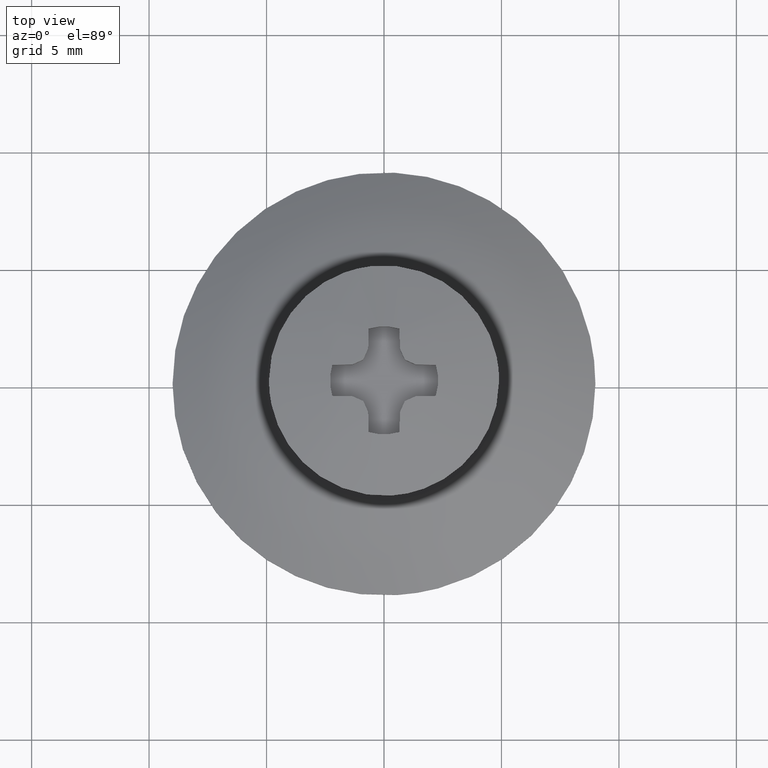
[diagram: clean part render]
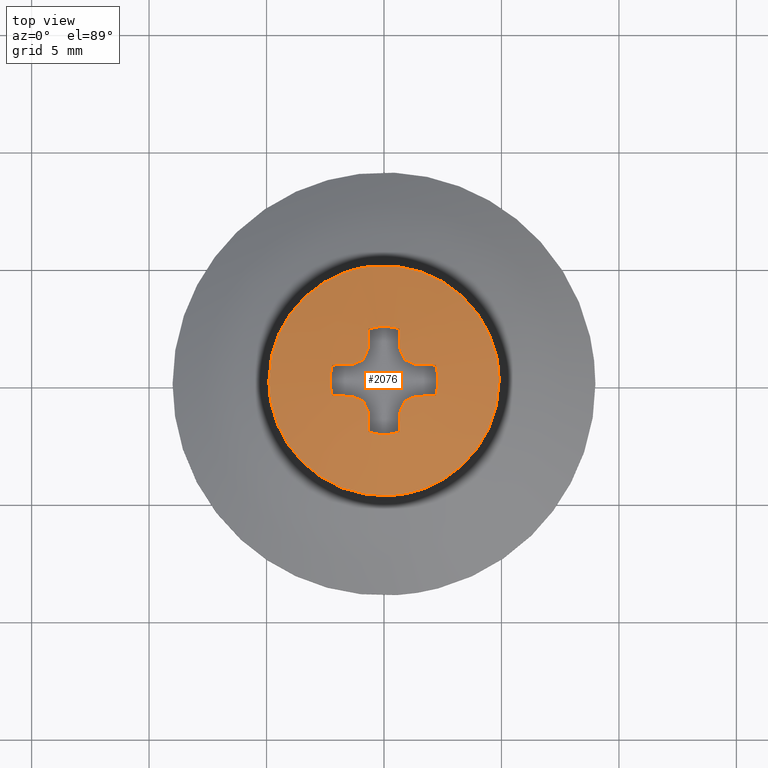
[diagram: same view with one face highlighted and labeled with its STEP entity id]
A machine part, top view. The second image highlights one B-rep face of the part: STEP entity #2076.
In plain terms, the highlighted face is a freeform B-spline surface patch.
Its self-contained STEP definition (entity closure, byte-faithful):
#547=CARTESIAN_POINT('',(-0.578363088957883,4.865746849036269,-0.702089309692383));
#548=VERTEX_POINT('',#547);
#554=CARTESIAN_POINT('',(4.899999618530280,0.0,-0.702089309692383));
#555=VERTEX_POINT('',#554);
#556=CARTESIAN_POINT('',(-0.578363088957883,4.865746849036269,-0.702089309692383));
#557=CARTESIAN_POINT('',(-0.290195831386604,4.899999618530280,-0.702089309692383));
#558=CARTESIAN_POINT('',(0.0,4.899999618530280,-0.702089309692383));
#559=CARTESIAN_POINT('',(4.899999618530281,4.899999618530281,-0.702089309692383));
#560=CARTESIAN_POINT('',(4.899999618530280,0.0,-0.702089309692383));
#568=(BOUNDED_CURVE()B_SPLINE_CURVE(2,(#556,#557,#558,#559,#560),.UNSPECIFIED.,.F.,.U.)B_SPLINE_CURVE_WITH_KNOTS((3,2,3),(0.229562633838624,0.250000000000000,0.500000000000000),.UNSPECIFIED.)CURVE()GEOMETRIC_REPRESENTATION_ITEM()RATIONAL_B_SPLINE_CURVE((0.956027068427728,0.976056136163702,1.0,0.707106781186547,1.0))REPRESENTATION_ITEM(''));
#569=EDGE_CURVE('',#548,#555,#568,.T.);
#571=CARTESIAN_POINT('',(0.299133294678434,-4.890860408311726,-0.702089309692383));
#572=VERTEX_POINT('',#571);
#573=CARTESIAN_POINT('',(4.899999618530280,0.0,-0.702089309692383));
#574=CARTESIAN_POINT('',(4.899999618530280,-4.609463642319453,-0.702089309692383));
#575=CARTESIAN_POINT('',(0.299133294678434,-4.890860408311726,-0.702089309692383));
#583=(BOUNDED_CURVE()B_SPLINE_CURVE(2,(#573,#574,#575),.UNSPECIFIED.,.F.,.U.)B_SPLINE_CURVE_WITH_KNOTS((3,3),(0.500000000000000,0.739333121908045),.UNSPECIFIED.)CURVE()GEOMETRIC_REPRESENTATION_ITEM()RATIONAL_B_SPLINE_CURVE((1.0,0.719603806222721,0.976072383868237))REPRESENTATION_ITEM(''));
#584=EDGE_CURVE('',#555,#572,#583,.T.);
#658=CARTESIAN_POINT('',(-4.899999618530280,0.0,-0.702089309692383));
#659=VERTEX_POINT('',#658);
#660=CARTESIAN_POINT('',(0.299133294678434,-4.890860408311726,-0.702089309692383));
#661=CARTESIAN_POINT('',(0.149706259286306,-4.899999618530280,-0.702089309692383));
#662=CARTESIAN_POINT('',(0.0,-4.899999618530280,-0.702089309692383));
#663=CARTESIAN_POINT('',(-4.899999618530281,-4.899999618530281,-0.702089309692383));
#664=CARTESIAN_POINT('',(-4.899999618530280,0.0,-0.702089309692383));
#672=(BOUNDED_CURVE()B_SPLINE_CURVE(2,(#660,#661,#662,#663,#664),.UNSPECIFIED.,.F.,.U.)B_SPLINE_CURVE_WITH_KNOTS((3,2,3),(0.739333121908045,0.750000000000000,1.0),.UNSPECIFIED.)CURVE()GEOMETRIC_REPRESENTATION_ITEM()RATIONAL_B_SPLINE_CURVE((0.976072383868237,0.987502974963827,1.0,0.707106781186547,1.0))REPRESENTATION_ITEM(''));
#673=EDGE_CURVE('',#572,#659,#672,.T.);
#675=CARTESIAN_POINT('',(-4.899999618530280,0.0,-0.702089309692383));
#676=CARTESIAN_POINT('',(-4.899999618530280,4.352058995941122,-0.702089309692383));
#677=CARTESIAN_POINT('',(-0.578363088957883,4.865746849036269,-0.702089309692383));
#685=(BOUNDED_CURVE()B_SPLINE_CURVE(2,(#675,#676,#677),.UNSPECIFIED.,.F.,.U.)B_SPLINE_CURVE_WITH_KNOTS((3,3),(0.0,0.229562633838624),.UNSPECIFIED.)CURVE()GEOMETRIC_REPRESENTATION_ITEM()RATIONAL_B_SPLINE_CURVE((1.0,0.731050645022846,0.956027068427728))REPRESENTATION_ITEM(''));
#686=EDGE_CURVE('',#659,#548,#685,.T.);
#1345=CARTESIAN_POINT('',(0.674654459122248,1.354762617754006,-0.065755417313702));
#1346=VERTEX_POINT('',#1345);
#1347=CARTESIAN_POINT('',(0.659842881066792,2.203317356239345,-0.152240022699469));
#1348=VERTEX_POINT('',#1347);
#1349=CARTESIAN_POINT('',(0.674654459122248,1.354762617754006,-0.065755417313702));
#1350=CARTESIAN_POINT('',(0.667230202686953,1.780097984067608,-0.098613884001408));
#1351=CARTESIAN_POINT('',(0.659842881066792,2.203317356239345,-0.152240022699469));
#1359=(BOUNDED_CURVE()B_SPLINE_CURVE(2,(#1349,#1350,#1351),.UNSPECIFIED.,.F.,.U.)CURVE()GEOMETRIC_REPRESENTATION_ITEM()QUASI_UNIFORM_CURVE()RATIONAL_B_SPLINE_CURVE((1.0,0.999700733143722,1.0))REPRESENTATION_ITEM(''));
#1360=EDGE_CURVE('',#1346,#1348,#1359,.T.);
#1390=CARTESIAN_POINT('',(-0.659842881066741,2.203317356239395,-0.152240022699423));
#1391=VERTEX_POINT('',#1390);
#1399=CARTESIAN_POINT('',(-0.659842881066741,2.203317356239395,-0.152240022699423));
#1400=CARTESIAN_POINT('',(3.274291E-014,2.400925125479454,-0.152240022699468));
#1401=CARTESIAN_POINT('',(0.659842881066792,2.203317356239345,-0.152240022699469));
#1409=(BOUNDED_CURVE()B_SPLINE_CURVE(2,(#1399,#1400,#1401),.UNSPECIFIED.,.F.,.U.)CURVE()GEOMETRIC_REPRESENTATION_ITEM()QUASI_UNIFORM_CURVE()RATIONAL_B_SPLINE_CURVE((1.0,0.957964067930148,1.0))REPRESENTATION_ITEM(''));
#1410=EDGE_CURVE('',#1391,#1348,#1409,.T.);
#1420=CARTESIAN_POINT('',(-0.674654459122170,1.354762617753792,-0.065755417313681));
#1421=VERTEX_POINT('',#1420);
#1422=CARTESIAN_POINT('',(-0.659842881066741,2.203317356239395,-0.152240022699423));
#1423=CARTESIAN_POINT('',(-0.667230202686888,1.780097984067565,-0.098613884001401));
#1424=CARTESIAN_POINT('',(-0.674654459122170,1.354762617753792,-0.065755417313681));
#1432=(BOUNDED_CURVE()B_SPLINE_CURVE(2,(#1422,#1423,#1424),.UNSPECIFIED.,.F.,.U.)CURVE()GEOMETRIC_REPRESENTATION_ITEM()QUASI_UNIFORM_CURVE()RATIONAL_B_SPLINE_CURVE((1.0,0.999700733143721,1.0))REPRESENTATION_ITEM(''));
#1433=EDGE_CURVE('',#1391,#1421,#1432,.T.);
#1450=CARTESIAN_POINT('',(-0.884174007421563,0.884174007421584,-0.044857865629248));
#1451=VERTEX_POINT('',#1450);
#1452=CARTESIAN_POINT('',(-0.674654459122170,1.354762617753792,-0.065755417313681));
#1453=CARTESIAN_POINT('',(-0.779351305381910,1.119609650942660,-0.051492948637311));
#1454=CARTESIAN_POINT('',(-0.884174007421563,0.884174007421584,-0.044857865629248));
#1462=(BOUNDED_CURVE()B_SPLINE_CURVE(2,(#1452,#1453,#1454),.UNSPECIFIED.,.F.,.U.)CURVE()GEOMETRIC_REPRESENTATION_ITEM()QUASI_UNIFORM_CURVE()RATIONAL_B_SPLINE_CURVE((1.0,0.999890395719999,1.0))REPRESENTATION_ITEM(''));
#1463=EDGE_CURVE('',#1421,#1451,#1462,.T.);
#1480=CARTESIAN_POINT('',(-1.354762617754598,0.674654459121911,-0.065755417313736));
#1481=VERTEX_POINT('',#1480);
#1482=CARTESIAN_POINT('',(-0.884174007421563,0.884174007421584,-0.044857865629248));
#1483=CARTESIAN_POINT('',(-1.119609650943111,0.779351305381763,-0.051492948637329));
#1484=CARTESIAN_POINT('',(-1.354762617754598,0.674654459121911,-0.065755417313736));
#1492=(BOUNDED_CURVE()B_SPLINE_CURVE(2,(#1482,#1483,#1484),.UNSPECIFIED.,.F.,.U.)CURVE()GEOMETRIC_REPRESENTATION_ITEM()QUASI_UNIFORM_CURVE()RATIONAL_B_SPLINE_CURVE((1.0,0.999890395719999,1.0))REPRESENTATION_ITEM(''));
#1493=EDGE_CURVE('',#1451,#1481,#1492,.T.);
#1510=CARTESIAN_POINT('',(-2.203317356239385,0.659842881066497,-0.152240022699462));
#1511=VERTEX_POINT('',#1510);
#1512=CARTESIAN_POINT('',(-1.354762617754598,0.674654459121911,-0.065755417313736));
#1513=CARTESIAN_POINT('',(-1.780097984067905,0.667230202686630,-0.098613884001449));
#1514=CARTESIAN_POINT('',(-2.203317356239385,0.659842881066497,-0.152240022699462));
#1522=(BOUNDED_CURVE()B_SPLINE_CURVE(2,(#1512,#1513,#1514),.UNSPECIFIED.,.F.,.U.)CURVE()GEOMETRIC_REPRESENTATION_ITEM()QUASI_UNIFORM_CURVE()RATIONAL_B_SPLINE_CURVE((1.0,0.999700733143722,1.0))REPRESENTATION_ITEM(''));
#1523=EDGE_CURVE('',#1481,#1511,#1522,.T.);
#1549=CARTESIAN_POINT('',(-2.203317356239440,-0.659842881066695,-0.152240022699423));
#1550=VERTEX_POINT('',#1549);
#1558=CARTESIAN_POINT('',(-2.203317356239440,-0.659842881066695,-0.152240022699423));
#1559=CARTESIAN_POINT('',(-2.400925125479399,-9.150666E-014,-0.152240022699468));
#1560=CARTESIAN_POINT('',(-2.203317356239385,0.659842881066497,-0.152240022699462));
#1568=(BOUNDED_CURVE()B_SPLINE_CURVE(2,(#1558,#1559,#1560),.UNSPECIFIED.,.F.,.U.)CURVE()GEOMETRIC_REPRESENTATION_ITEM()QUASI_UNIFORM_CURVE()RATIONAL_B_SPLINE_CURVE((1.0,0.957964067930170,1.0))REPRESENTATION_ITEM(''));
#1569=EDGE_CURVE('',#1550,#1511,#1568,.T.);
#1579=CARTESIAN_POINT('',(-1.354762617754582,-0.674654459121897,-0.065755417313729));
#1580=VERTEX_POINT('',#1579);
#1581=CARTESIAN_POINT('',(-2.203317356239440,-0.659842881066695,-0.152240022699423));
#1582=CARTESIAN_POINT('',(-1.780097984067938,-0.667230202686729,-0.098613884001470));
#1583=CARTESIAN_POINT('',(-1.354762617754582,-0.674654459121897,-0.065755417313729));
#1591=(BOUNDED_CURVE()B_SPLINE_CURVE(2,(#1581,#1582,#1583),.UNSPECIFIED.,.F.,.U.)CURVE()GEOMETRIC_REPRESENTATION_ITEM()QUASI_UNIFORM_CURVE()RATIONAL_B_SPLINE_CURVE((1.0,0.999700733143722,1.0))REPRESENTATION_ITEM(''));
#1592=EDGE_CURVE('',#1550,#1580,#1591,.T.);
#1609=CARTESIAN_POINT('',(-0.884174007421586,-0.884174007421505,-0.044857865629241));
#1610=VERTEX_POINT('',#1609);
#1611=CARTESIAN_POINT('',(-1.354762617754582,-0.674654459121897,-0.065755417313729));
#1612=CARTESIAN_POINT('',(-1.119609650943068,-0.779351305381727,-0.051492948637332));
#1613=CARTESIAN_POINT('',(-0.884174007421586,-0.884174007421505,-0.044857865629241));
#1621=(BOUNDED_CURVE()B_SPLINE_CURVE(2,(#1611,#1612,#1613),.UNSPECIFIED.,.F.,.U.)CURVE()GEOMETRIC_REPRESENTATION_ITEM()QUASI_UNIFORM_CURVE()RATIONAL_B_SPLINE_CURVE((1.0,0.999890395719999,1.0))REPRESENTATION_ITEM(''));
#1622=EDGE_CURVE('',#1580,#1610,#1621,.T.);
#1639=CARTESIAN_POINT('',(-0.674654459122219,-1.354762617753910,-0.065755417313691));
#1640=VERTEX_POINT('',#1639);
#1641=CARTESIAN_POINT('',(-0.884174007421586,-0.884174007421505,-0.044857865629241));
#1642=CARTESIAN_POINT('',(-0.779351305381972,-1.119609650942695,-0.051492948637311));
#1643=CARTESIAN_POINT('',(-0.674654459122218,-1.354762617753909,-0.065755417313695));
#1651=(BOUNDED_CURVE()B_SPLINE_CURVE(2,(#1641,#1642,#1643),.UNSPECIFIED.,.F.,.U.)CURVE()GEOMETRIC_REPRESENTATION_ITEM()QUASI_UNIFORM_CURVE()RATIONAL_B_SPLINE_CURVE((1.0,0.999890395719999,1.0))REPRESENTATION_ITEM(''));
#1652=EDGE_CURVE('',#1610,#1640,#1651,.T.);
#1669=CARTESIAN_POINT('',(-0.659842881066765,-2.203317356239260,-0.152240022699455));
#1670=VERTEX_POINT('',#1669);
#1671=CARTESIAN_POINT('',(-0.674654459122219,-1.354762617753910,-0.065755417313691));
#1672=CARTESIAN_POINT('',(-0.667230202686922,-1.780097984067518,-0.098613884001397));
#1673=CARTESIAN_POINT('',(-0.659842881066765,-2.203317356239260,-0.152240022699455));
#1681=(BOUNDED_CURVE()B_SPLINE_CURVE(2,(#1671,#1672,#1673),.UNSPECIFIED.,.F.,.U.)CURVE()GEOMETRIC_REPRESENTATION_ITEM()QUASI_UNIFORM_CURVE()RATIONAL_B_SPLINE_CURVE((1.0,0.999700733143721,1.0))REPRESENTATION_ITEM(''));
#1682=EDGE_CURVE('',#1640,#1670,#1681,.T.);
#1708=CARTESIAN_POINT('',(0.659842881066520,-2.203317356239595,-0.152240022699423));
#1709=VERTEX_POINT('',#1708);
#1717=CARTESIAN_POINT('',(0.659842881066520,-2.203317356239595,-0.152240022699423));
#1718=CARTESIAN_POINT('',(-1.726050E-013,-2.400925125479412,-0.152240022699469));
#1719=CARTESIAN_POINT('',(-0.659842881066765,-2.203317356239260,-0.152240022699455));
#1727=(BOUNDED_CURVE()B_SPLINE_CURVE(2,(#1717,#1718,#1719),.UNSPECIFIED.,.F.,.U.)CURVE()GEOMETRIC_REPRESENTATION_ITEM()QUASI_UNIFORM_CURVE()RATIONAL_B_SPLINE_CURVE((1.0,0.957964067930165,1.0))REPRESENTATION_ITEM(''));
#1728=EDGE_CURVE('',#1709,#1670,#1727,.T.);
#1738=CARTESIAN_POINT('',(0.674654459121850,-1.354762617754800,-0.065755417313747));
#1739=VERTEX_POINT('',#1738);
#1740=CARTESIAN_POINT('',(0.659842881066520,-2.203317356239595,-0.152240022699423));
#1741=CARTESIAN_POINT('',(0.667230202686618,-1.780097984068153,-0.098613884001481));
#1742=CARTESIAN_POINT('',(0.674654459121850,-1.354762617754802,-0.065755417313743));
#1750=(BOUNDED_CURVE()B_SPLINE_CURVE(2,(#1740,#1741,#1742),.UNSPECIFIED.,.F.,.U.)CURVE()GEOMETRIC_REPRESENTATION_ITEM()QUASI_UNIFORM_CURVE()RATIONAL_B_SPLINE_CURVE((1.0,0.999700733143722,1.0))REPRESENTATION_ITEM(''));
#1751=EDGE_CURVE('',#1709,#1739,#1750,.T.);
#1768=CARTESIAN_POINT('',(0.884174007421629,-0.884174007421687,-0.044857865629251));
#1769=VERTEX_POINT('',#1768);
#1770=CARTESIAN_POINT('',(0.674654459121850,-1.354762617754800,-0.065755417313747));
#1771=CARTESIAN_POINT('',(0.779351305381761,-1.119609650943247,-0.051492948637329));
#1772=CARTESIAN_POINT('',(0.884174007421629,-0.884174007421687,-0.044857865629251));
#1780=(BOUNDED_CURVE()B_SPLINE_CURVE(2,(#1770,#1771,#1772),.UNSPECIFIED.,.F.,.U.)CURVE()GEOMETRIC_REPRESENTATION_ITEM()QUASI_UNIFORM_CURVE()RATIONAL_B_SPLINE_CURVE((1.0,0.999890395719999,1.0))REPRESENTATION_ITEM(''));
#1781=EDGE_CURVE('',#1739,#1769,#1780,.T.);
#1798=CARTESIAN_POINT('',(1.354762617753950,-0.674654459122298,-0.065755417313702));
#1799=VERTEX_POINT('',#1798);
#1800=CARTESIAN_POINT('',(0.884174007421629,-0.884174007421687,-0.044857865629251));
#1801=CARTESIAN_POINT('',(1.119609650942713,-0.779351305382066,-0.051492948637308));
#1802=CARTESIAN_POINT('',(1.354762617753950,-0.674654459122298,-0.065755417313702));
#1810=(BOUNDED_CURVE()B_SPLINE_CURVE(2,(#1800,#1801,#1802),.UNSPECIFIED.,.F.,.U.)CURVE()GEOMETRIC_REPRESENTATION_ITEM()QUASI_UNIFORM_CURVE()RATIONAL_B_SPLINE_CURVE((1.0,0.999890395719999,1.0))REPRESENTATION_ITEM(''));
#1811=EDGE_CURVE('',#1769,#1799,#1810,.T.);
#1828=CARTESIAN_POINT('',(2.203317356239220,-0.659842881066911,-0.152240022699455));
#1829=VERTEX_POINT('',#1828);
#1830=CARTESIAN_POINT('',(1.354762617753950,-0.674654459122298,-0.065755417313702));
#1831=CARTESIAN_POINT('',(1.780097984067475,-0.667230202687036,-0.098613884001401));
#1832=CARTESIAN_POINT('',(2.203317356239220,-0.659842881066911,-0.152240022699455));
#1840=(BOUNDED_CURVE()B_SPLINE_CURVE(2,(#1830,#1831,#1832),.UNSPECIFIED.,.F.,.U.)CURVE()GEOMETRIC_REPRESENTATION_ITEM()QUASI_UNIFORM_CURVE()RATIONAL_B_SPLINE_CURVE((1.0,0.999700733143722,1.0))REPRESENTATION_ITEM(''));
#1841=EDGE_CURVE('',#1799,#1829,#1840,.T.);
#1867=CARTESIAN_POINT('',(2.203317356239340,0.659842881066496,-0.152240022699423));
#1868=VERTEX_POINT('',#1867);
#1876=CARTESIAN_POINT('',(2.203317356239340,0.659842881066496,-0.152240022699423));
#1877=CARTESIAN_POINT('',(2.400925125479443,-2.255141E-013,-0.152240022699468));
#1878=CARTESIAN_POINT('',(2.203317356239220,-0.659842881066911,-0.152240022699455));
#1886=(BOUNDED_CURVE()B_SPLINE_CURVE(2,(#1876,#1877,#1878),.UNSPECIFIED.,.F.,.U.)CURVE()GEOMETRIC_REPRESENTATION_ITEM()QUASI_UNIFORM_CURVE()RATIONAL_B_SPLINE_CURVE((1.0,0.957964067930153,1.0))REPRESENTATION_ITEM(''));
#1887=EDGE_CURVE('',#1868,#1829,#1886,.T.);
#1897=CARTESIAN_POINT('',(1.354762617754586,0.674654459121797,-0.065755417313729));
#1898=VERTEX_POINT('',#1897);
#1899=CARTESIAN_POINT('',(2.203317356239340,0.659842881066496,-0.152240022699423));
#1900=CARTESIAN_POINT('',(1.780097984067909,0.667230202686580,-0.098613884001460));
#1901=CARTESIAN_POINT('',(1.354762617754585,0.674654459121797,-0.065755417313729));
#1909=(BOUNDED_CURVE()B_SPLINE_CURVE(2,(#1899,#1900,#1901),.UNSPECIFIED.,.F.,.U.)CURVE()GEOMETRIC_REPRESENTATION_ITEM()QUASI_UNIFORM_CURVE()RATIONAL_B_SPLINE_CURVE((1.0,0.999700733143722,1.0))REPRESENTATION_ITEM(''));
#1910=EDGE_CURVE('',#1868,#1898,#1909,.T.);
#1927=CARTESIAN_POINT('',(0.884174007421589,0.884174007421493,-0.044857865629241));
#1928=VERTEX_POINT('',#1927);
#1929=CARTESIAN_POINT('',(1.354762617754586,0.674654459121797,-0.065755417313729));
#1930=CARTESIAN_POINT('',(1.119609650943078,0.779351305381718,-0.051492948637336));
#1931=CARTESIAN_POINT('',(0.884174007421589,0.884174007421493,-0.044857865629241));
#1939=(BOUNDED_CURVE()B_SPLINE_CURVE(2,(#1929,#1930,#1931),.UNSPECIFIED.,.F.,.U.)CURVE()GEOMETRIC_REPRESENTATION_ITEM()QUASI_UNIFORM_CURVE()RATIONAL_B_SPLINE_CURVE((1.0,0.999890395719999,1.0))REPRESENTATION_ITEM(''));
#1940=EDGE_CURVE('',#1898,#1928,#1939,.T.);
#1957=CARTESIAN_POINT('',(0.884174007421589,0.884174007421493,-0.044857865629241));
#1958=CARTESIAN_POINT('',(0.779351305381923,1.119609650942725,-0.051492948637325));
#1959=CARTESIAN_POINT('',(0.674654459122248,1.354762617754006,-0.065755417313702));
#1967=(BOUNDED_CURVE()B_SPLINE_CURVE(2,(#1957,#1958,#1959),.UNSPECIFIED.,.F.,.U.)CURVE()GEOMETRIC_REPRESENTATION_ITEM()QUASI_UNIFORM_CURVE()RATIONAL_B_SPLINE_CURVE((1.0,0.999890395719999,1.0))REPRESENTATION_ITEM(''));
#1968=EDGE_CURVE('',#1928,#1346,#1967,.T.);
#2024=CARTESIAN_POINT('',(-5.239876967273133,-5.239761497062197,-1.651547818162478));
#2025=CARTESIAN_POINT('',(-2.683432972774643,-5.366747676905451,-0.845767989365806));
#2026=CARTESIAN_POINT('',(2.683433058394758,-5.366747676905451,-0.845767989365806));
#2027=CARTESIAN_POINT('',(5.239877126549621,-5.239761489150459,-1.651547868365723));
#2028=CARTESIAN_POINT('',(-5.366860213112131,-2.683370972297311,-0.845804363248764));
#2029=CARTESIAN_POINT('',(-2.750078481255933,-2.750017878279129,-7.105427E-015));
#2030=CARTESIAN_POINT('',(2.750078569002503,-2.750017878279129,-7.105427E-015));
#2031=CARTESIAN_POINT('',(5.366860376052147,-2.683370968147387,-0.845804415914745));
#2032=CARTESIAN_POINT('',(-5.366860213112131,2.683385997683903,-0.845804363248764));
#2033=CARTESIAN_POINT('',(-2.750078481255933,2.750033276851367,-7.105427E-015));
#2034=CARTESIAN_POINT('',(2.750078569002502,2.750033276851367,-7.105427E-015));
#2035=CARTESIAN_POINT('',(5.366860376052147,2.683385993533956,-0.845804415914745));
#2036=CARTESIAN_POINT('',(-5.239875578845449,5.239789448410570,-1.651556628116192));
#2037=CARTESIAN_POINT('',(-2.683432244504374,5.366776271194142,-0.845777231514243));
#2038=CARTESIAN_POINT('',(2.683432330124465,5.366776271194142,-0.845777231514243));
#2039=CARTESIAN_POINT('',(5.239875738121902,5.239789440498796,-1.651556678319412));
#2047=(BOUNDED_SURFACE()B_SPLINE_SURFACE(2,2,((#2024,#2028,#2032,#2036),(#2025,#2029,#2033,#2037),(#2026,#2030,#2034,#2038),(#2027,#2031,#2035,#2039)),.UNSPECIFIED.,.F.,.F.,.U.)B_SPLINE_SURFACE_WITH_KNOTS((3,1,3),(3,1,3),(3.703130245208740,9.013298188370962,14.323466300964361),(3.703247264409065,9.013298188370962,14.323378845667840),.UNSPECIFIED.)GEOMETRIC_REPRESENTATION_ITEM()RATIONAL_B_SPLINE_SURFACE(((1.049672921113296,1.024837007879220,1.024837007879220,1.049673199248706),(1.024835913234076,1.0,1.0,1.024836191369486),(1.024835913234076,1.0,1.0,1.024836191369486),(1.049672922698242,1.024837009464165,1.024837009464165,1.049673200833651)))REPRESENTATION_ITEM('')SURFACE());
#2048=ORIENTED_EDGE('',*,*,#673,.F.);
#2049=ORIENTED_EDGE('',*,*,#584,.F.);
#2050=ORIENTED_EDGE('',*,*,#569,.F.);
#2051=ORIENTED_EDGE('',*,*,#686,.F.);
#2052=EDGE_LOOP('',(#2048,#2049,#2050,#2051));
#2053=FACE_OUTER_BOUND('',#2052,.T.);
#2054=ORIENTED_EDGE('',*,*,#1968,.F.);
#2055=ORIENTED_EDGE('',*,*,#1940,.F.);
#2056=ORIENTED_EDGE('',*,*,#1910,.F.);
#2057=ORIENTED_EDGE('',*,*,#1887,.T.);
#2058=ORIENTED_EDGE('',*,*,#1841,.F.);
#2059=ORIENTED_EDGE('',*,*,#1811,.F.);
#2060=ORIENTED_EDGE('',*,*,#1781,.F.);
#2061=ORIENTED_EDGE('',*,*,#1751,.F.);
#2062=ORIENTED_EDGE('',*,*,#1728,.T.);
#2063=ORIENTED_EDGE('',*,*,#1682,.F.);
#2064=ORIENTED_EDGE('',*,*,#1652,.F.);
#2065=ORIENTED_EDGE('',*,*,#1622,.F.);
#2066=ORIENTED_EDGE('',*,*,#1592,.F.);
#2067=ORIENTED_EDGE('',*,*,#1569,.T.);
#2068=ORIENTED_EDGE('',*,*,#1523,.F.);
#2069=ORIENTED_EDGE('',*,*,#1493,.F.);
#2070=ORIENTED_EDGE('',*,*,#1463,.F.);
#2071=ORIENTED_EDGE('',*,*,#1433,.F.);
#2072=ORIENTED_EDGE('',*,*,#1410,.T.);
#2073=ORIENTED_EDGE('',*,*,#1360,.F.);
#2074=EDGE_LOOP('',(#2054,#2055,#2056,#2057,#2058,#2059,#2060,#2061,#2062,#2063,#2064,#2065,#2066,#2067,#2068,#2069,#2070,#2071,#2072,#2073));
#2075=FACE_BOUND('',#2074,.T.);
#2076=ADVANCED_FACE('',(#2053,#2075),#2047,.T.);